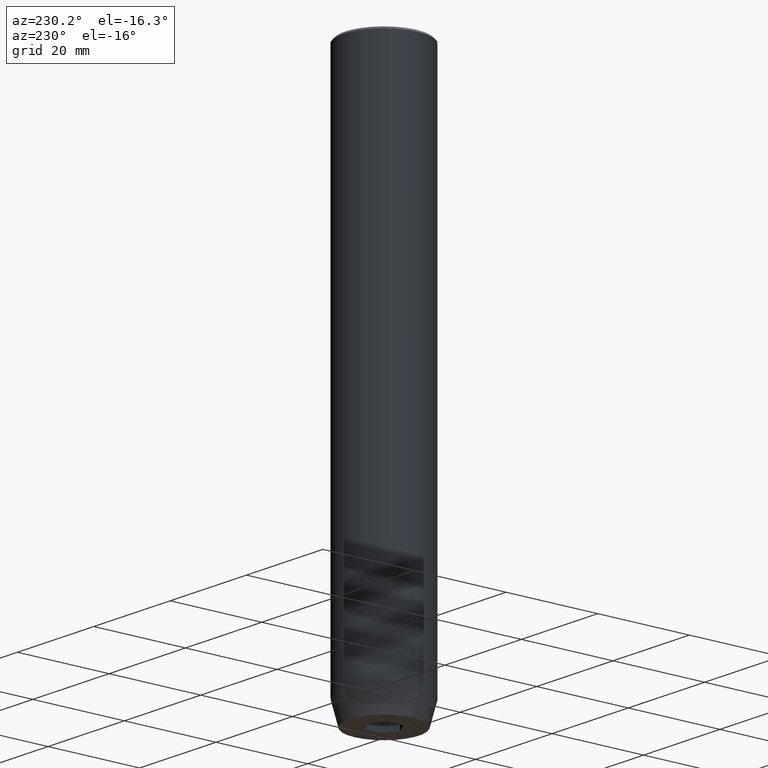
[diagram: clean part render]
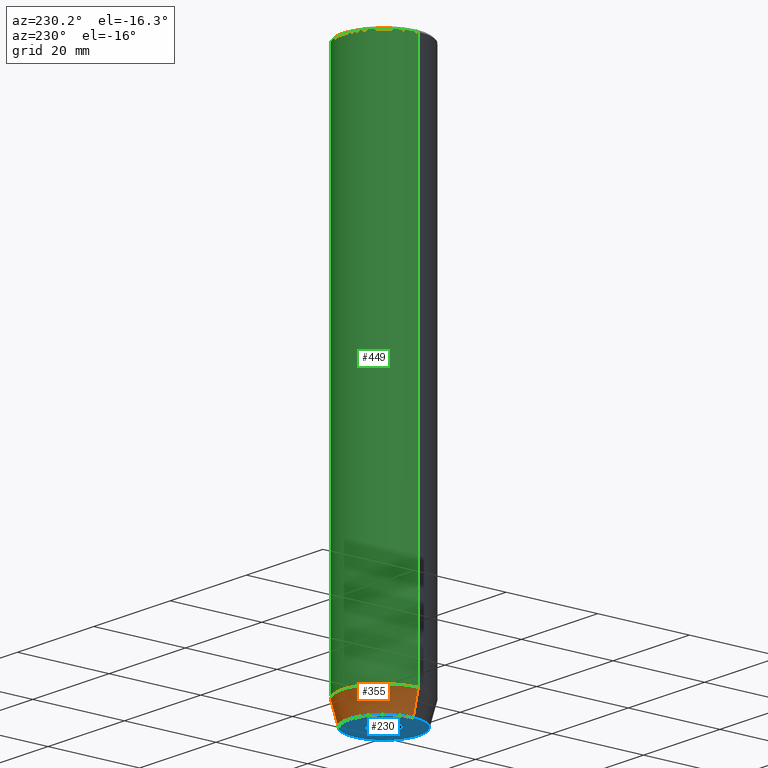
[diagram: same view with three faces highlighted in distinct colors, each labeled with its STEP entity id]
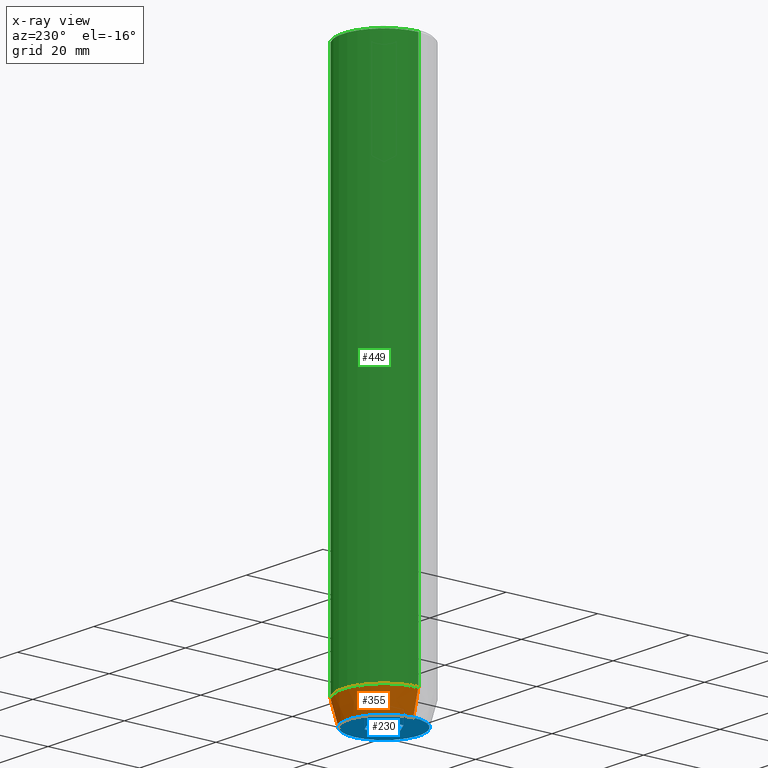
[diagram: x-ray of the same camera — body ghosted, the three highlighted faces saturated]
A machine part, auxiliary view with three faces highlighted in distinct colors.
The next image is the same camera in x-ray (body ghosted, the three faces saturated) — at least one of them is partly hidden behind the body in this view.
Their STEP definitions:

[orange] entity #355 — the highlighted conical surface has half-angle 15 deg.
#14 = ORIENTED_EDGE ( 'NONE', *, *, #240, .F. ) ;
#29 = DIRECTION ( 'NONE',  ( -0.000000000000000000, -0.000000000000000000, 1.000000000000000000 ) ) ;
#35 = CARTESIAN_POINT ( 'NONE',  ( 0.000000000000000000, 0.000000000000000000, -114.9999999999999858 ) ) ;
#45 = EDGE_CURVE ( 'NONE', #270, #75, #459, .T. ) ;
#49 = CONICAL_SURFACE ( 'NONE', #70, 9.000000000000000000, 0.2617993877991502405 ) ;
#70 = AXIS2_PLACEMENT_3D ( 'NONE', #35, #29, #303 ) ;
#75 = VERTEX_POINT ( 'NONE', #92 ) ;
#77 = EDGE_LOOP ( 'NONE', ( #533, #349, #473, #14 ) ) ;
#87 = CARTESIAN_POINT ( 'NONE',  ( 0.000000000000000000, 0.000000000000000000, -120.0000000000000000 ) ) ;
#88 = EDGE_CURVE ( 'NONE', #75, #484, #505, .T. ) ;
#92 = CARTESIAN_POINT ( 'NONE',  ( -7.660254037844380193, 1.020146339021394272E-15, -120.0000000000000000 ) ) ;
#94 = DIRECTION ( 'NONE',  ( -0.2588190451025214611, 3.169619151431774186E-17, 0.9659258262890679791 ) ) ;
#99 = CARTESIAN_POINT ( 'NONE',  ( 9.000000000000000000, 0.000000000000000000, -114.9999999999999858 ) ) ;
#104 = CARTESIAN_POINT ( 'NONE',  ( 7.660254037844380193, 0.000000000000000000, -120.0000000000000000 ) ) ;
#142 = DIRECTION ( 'NONE',  ( -0.000000000000000000, -0.000000000000000000, 1.000000000000000000 ) ) ;
#149 = CARTESIAN_POINT ( 'NONE',  ( 0.000000000000000000, 0.000000000000000000, -114.9999999999999858 ) ) ;
#223 = CARTESIAN_POINT ( 'NONE',  ( -9.000000000000000000, 1.102182119232617714E-15, -114.9999999999999858 ) ) ;
#232 = AXIS2_PLACEMENT_3D ( 'NONE', #87, #327, #365 ) ;
#240 = EDGE_CURVE ( 'NONE', #270, #465, #561, .T. ) ;
#257 = AXIS2_PLACEMENT_3D ( 'NONE', #149, #142, #330 ) ;
#263 = EDGE_CURVE ( 'NONE', #465, #484, #506, .T. ) ;
#270 = VERTEX_POINT ( 'NONE', #104 ) ;
#279 = CARTESIAN_POINT ( 'NONE',  ( 9.000000000000000000, 0.000000000000000000, -114.9999999999999858 ) ) ;
#303 = DIRECTION ( 'NONE',  ( 1.000000000000000000, 0.000000000000000000, 0.000000000000000000 ) ) ;
#327 = DIRECTION ( 'NONE',  ( -0.000000000000000000, -0.000000000000000000, 1.000000000000000000 ) ) ;
#330 = DIRECTION ( 'NONE',  ( 1.000000000000000000, 0.000000000000000000, 0.000000000000000000 ) ) ;
#349 = ORIENTED_EDGE ( 'NONE', *, *, #88, .T. ) ;
#351 = FACE_OUTER_BOUND ( 'NONE', #77, .T. ) ;
#355 = ADVANCED_FACE ( 'NONE', ( #351 ), #49, .T. ) ;
#365 = DIRECTION ( 'NONE',  ( 1.000000000000000000, 0.000000000000000000, 0.000000000000000000 ) ) ;
#401 = CARTESIAN_POINT ( 'NONE',  ( -9.000000000000000000, 1.102182119232617714E-15, -114.9999999999999858 ) ) ;
#459 = CIRCLE ( 'NONE', #232, 7.660254037844380193 ) ;
#465 = VERTEX_POINT ( 'NONE', #279 ) ;
#473 = ORIENTED_EDGE ( 'NONE', *, *, #263, .F. ) ;
#484 = VERTEX_POINT ( 'NONE', #223 ) ;
#490 = VECTOR ( 'NONE', #94, 1000.000000000000114 ) ;
#505 = LINE ( 'NONE', #401, #490 ) ;
#506 = CIRCLE ( 'NONE', #257, 9.000000000000000000 ) ;
#524 = VECTOR ( 'NONE', #551, 1000.000000000000114 ) ;
#533 = ORIENTED_EDGE ( 'NONE', *, *, #45, .T. ) ;
#551 = DIRECTION ( 'NONE',  ( 0.2588190451025214611, 0.000000000000000000, 0.9659258262890679791 ) ) ;
#561 = LINE ( 'NONE', #99, #524 ) ;

[blue] entity #230 — the highlighted planar face has unit normal (0, 0, -1).
#34 = EDGE_CURVE ( 'NONE', #73, #526, #582, .T. ) ;
#44 = CARTESIAN_POINT ( 'NONE',  ( -3.000000000000000888, 1.732050807568876527, -120.0000000000000000 ) ) ;
#45 = EDGE_CURVE ( 'NONE', #270, #75, #459, .T. ) ;
#50 = EDGE_CURVE ( 'NONE', #512, #523, #325, .T. ) ;
#53 = DIRECTION ( 'NONE',  ( 0.000000000000000000, -1.000000000000000000, 0.000000000000000000 ) ) ;
#59 = VECTOR ( 'NONE', #360, 999.9999999999998863 ) ;
#61 = CARTESIAN_POINT ( 'NONE',  ( 3.000000000000000000, 1.732050807568876527, -120.0000000000000000 ) ) ;
#62 = EDGE_CURVE ( 'NONE', #526, #162, #135, .T. ) ;
#71 = DIRECTION ( 'NONE',  ( -2.503857664561932376E-16, 1.000000000000000000, 0.000000000000000000 ) ) ;
#73 = VERTEX_POINT ( 'NONE', #44 ) ;
#75 = VERTEX_POINT ( 'NONE', #92 ) ;
#87 = CARTESIAN_POINT ( 'NONE',  ( 0.000000000000000000, 0.000000000000000000, -120.0000000000000000 ) ) ;
#92 = CARTESIAN_POINT ( 'NONE',  ( -7.660254037844380193, 1.020146339021394272E-15, -120.0000000000000000 ) ) ;
#104 = CARTESIAN_POINT ( 'NONE',  ( 7.660254037844380193, 0.000000000000000000, -120.0000000000000000 ) ) ;
#113 = LINE ( 'NONE', #161, #491 ) ;
#124 = EDGE_LOOP ( 'NONE', ( #565, #226 ) ) ;
#133 = VECTOR ( 'NONE', #53, 1000.000000000000000 ) ;
#135 = LINE ( 'NONE', #502, #394 ) ;
#161 = CARTESIAN_POINT ( 'NONE',  ( -3.000000000000000444, -7.511572993685800087E-16, -120.0000000000000000 ) ) ;
#162 = VERTEX_POINT ( 'NONE', #61 ) ;
#163 = AXIS2_PLACEMENT_3D ( 'NONE', #210, #208, #306 ) ;
#185 = CARTESIAN_POINT ( 'NONE',  ( -2.168404344971008868E-16, -3.464101615137754830, -120.0000000000000000 ) ) ;
#186 = CARTESIAN_POINT ( 'NONE',  ( -1.499999999999999556, 2.598076211353316012, -120.0000000000000000 ) ) ;
#201 = FACE_OUTER_BOUND ( 'NONE', #124, .T. ) ;
#208 = DIRECTION ( 'NONE',  ( -0.000000000000000000, -0.000000000000000000, 1.000000000000000000 ) ) ;
#210 = CARTESIAN_POINT ( 'NONE',  ( 0.000000000000000000, 0.000000000000000000, -120.0000000000000000 ) ) ;
#226 = ORIENTED_EDGE ( 'NONE', *, *, #389, .F. ) ;
#230 = ADVANCED_FACE ( 'NONE', ( #239, #201 ), #333, .T. ) ;
#232 = AXIS2_PLACEMENT_3D ( 'NONE', #87, #327, #365 ) ;
#237 = VECTOR ( 'NONE', #324, 1000.000000000000000 ) ;
#239 = FACE_BOUND ( 'NONE', #408, .T. ) ;
#270 = VERTEX_POINT ( 'NONE', #104 ) ;
#274 = CARTESIAN_POINT ( 'NONE',  ( -3.000000000000000000, -1.732050807568877859, -120.0000000000000000 ) ) ;
#278 = EDGE_CURVE ( 'NONE', #162, #341, #421, .T. ) ;
#282 = DIRECTION ( 'NONE',  ( 0.8660254037844385966, -0.5000000000000001110, 0.000000000000000000 ) ) ;
#286 = DIRECTION ( 'NONE',  ( 0.000000000000000000, 0.000000000000000000, -1.000000000000000000 ) ) ;
#305 = ORIENTED_EDGE ( 'NONE', *, *, #323, .F. ) ;
#306 = DIRECTION ( 'NONE',  ( 1.000000000000000000, 0.000000000000000000, 0.000000000000000000 ) ) ;
#323 = EDGE_CURVE ( 'NONE', #523, #73, #113, .T. ) ;
#324 = DIRECTION ( 'NONE',  ( -0.8660254037844385966, -0.5000000000000001110, 0.000000000000000000 ) ) ;
#325 = LINE ( 'NONE', #541, #432 ) ;
#327 = DIRECTION ( 'NONE',  ( -0.000000000000000000, -0.000000000000000000, 1.000000000000000000 ) ) ;
#333 = PLANE ( 'NONE',  #450 ) ;
#341 = VERTEX_POINT ( 'NONE', #397 ) ;
#360 = DIRECTION ( 'NONE',  ( 0.8660254037844387076, 0.4999999999999999445, 0.000000000000000000 ) ) ;
#362 = DIRECTION ( 'NONE',  ( -0.8660254037844385966, 0.5000000000000001110, 0.000000000000000000 ) ) ;
#365 = DIRECTION ( 'NONE',  ( 1.000000000000000000, 0.000000000000000000, 0.000000000000000000 ) ) ;
#382 = DIRECTION ( 'NONE',  ( -1.000000000000000000, 0.000000000000000000, -0.000000000000000000 ) ) ;
#389 = EDGE_CURVE ( 'NONE', #75, #270, #451, .T. ) ;
#394 = VECTOR ( 'NONE', #282, 1000.000000000000000 ) ;
#397 = CARTESIAN_POINT ( 'NONE',  ( 3.000000000000000000, -1.732050807568876527, -120.0000000000000000 ) ) ;
#400 = CARTESIAN_POINT ( 'NONE',  ( 1.500000000000000222, -2.598076211353315568, -120.0000000000000000 ) ) ;
#408 = EDGE_LOOP ( 'NONE', ( #574, #305, #419, #562, #429, #441 ) ) ;
#419 = ORIENTED_EDGE ( 'NONE', *, *, #50, .F. ) ;
#421 = LINE ( 'NONE', #474, #133 ) ;
#429 = ORIENTED_EDGE ( 'NONE', *, *, #278, .F. ) ;
#432 = VECTOR ( 'NONE', #362, 1000.000000000000000 ) ;
#441 = ORIENTED_EDGE ( 'NONE', *, *, #62, .F. ) ;
#447 = LINE ( 'NONE', #400, #237 ) ;
#450 = AXIS2_PLACEMENT_3D ( 'NONE', #511, #286, #382 ) ;
#451 = CIRCLE ( 'NONE', #163, 7.660254037844380193 ) ;
#452 = CARTESIAN_POINT ( 'NONE',  ( 0.000000000000000000, 3.464101615137754386, -120.0000000000000000 ) ) ;
#459 = CIRCLE ( 'NONE', #232, 7.660254037844380193 ) ;
#474 = CARTESIAN_POINT ( 'NONE',  ( 3.000000000000000000, 0.000000000000000000, -120.0000000000000000 ) ) ;
#475 = EDGE_CURVE ( 'NONE', #341, #512, #447, .T. ) ;
#491 = VECTOR ( 'NONE', #71, 1000.000000000000000 ) ;
#502 = CARTESIAN_POINT ( 'NONE',  ( 1.500000000000000222, 2.598076211353315568, -120.0000000000000000 ) ) ;
#511 = CARTESIAN_POINT ( 'NONE',  ( 0.000000000000000000, 7.660254037844380193, -120.0000000000000000 ) ) ;
#512 = VERTEX_POINT ( 'NONE', #185 ) ;
#523 = VERTEX_POINT ( 'NONE', #274 ) ;
#526 = VERTEX_POINT ( 'NONE', #452 ) ;
#541 = CARTESIAN_POINT ( 'NONE',  ( -1.500000000000000666, -2.598076211353316456, -120.0000000000000000 ) ) ;
#562 = ORIENTED_EDGE ( 'NONE', *, *, #475, .F. ) ;
#565 = ORIENTED_EDGE ( 'NONE', *, *, #45, .F. ) ;
#574 = ORIENTED_EDGE ( 'NONE', *, *, #34, .F. ) ;
#582 = LINE ( 'NONE', #186, #59 ) ;

[green] entity #449 — the highlighted cylindrical surface (partial cylindrical patch) has radius 9 mm, axis along (-0, -0, 1).
#13 = CARTESIAN_POINT ( 'NONE',  ( 9.000000000000000000, 0.000000000000000000, -0.4999999999999952260 ) ) ;
#74 = LINE ( 'NONE', #386, #410 ) ;
#105 = VERTEX_POINT ( 'NONE', #280 ) ;
#112 = VECTOR ( 'NONE', #122, 1000.000000000000000 ) ;
#122 = DIRECTION ( 'NONE',  ( -0.000000000000000000, -0.000000000000000000, 1.000000000000000000 ) ) ;
#142 = DIRECTION ( 'NONE',  ( -0.000000000000000000, -0.000000000000000000, 1.000000000000000000 ) ) ;
#149 = CARTESIAN_POINT ( 'NONE',  ( 0.000000000000000000, 0.000000000000000000, -114.9999999999999858 ) ) ;
#156 = EDGE_CURVE ( 'NONE', #105, #173, #339, .T. ) ;
#172 = CYLINDRICAL_SURFACE ( 'NONE', #576, 9.000000000000000000 ) ;
#173 = VERTEX_POINT ( 'NONE', #13 ) ;
#181 = CARTESIAN_POINT ( 'NONE',  ( 0.000000000000000000, 0.000000000000000000, 0.000000000000000000 ) ) ;
#217 = LINE ( 'NONE', #356, #112 ) ;
#223 = CARTESIAN_POINT ( 'NONE',  ( -9.000000000000000000, 1.102182119232617714E-15, -114.9999999999999858 ) ) ;
#252 = DIRECTION ( 'NONE',  ( 0.000000000000000000, 0.000000000000000000, -1.000000000000000000 ) ) ;
#257 = AXIS2_PLACEMENT_3D ( 'NONE', #149, #142, #330 ) ;
#258 = FACE_OUTER_BOUND ( 'NONE', #377, .T. ) ;
#263 = EDGE_CURVE ( 'NONE', #465, #484, #506, .T. ) ;
#265 = ORIENTED_EDGE ( 'NONE', *, *, #156, .T. ) ;
#271 = DIRECTION ( 'NONE',  ( -0.000000000000000000, -0.000000000000000000, 1.000000000000000000 ) ) ;
#275 = ORIENTED_EDGE ( 'NONE', *, *, #422, .F. ) ;
#279 = CARTESIAN_POINT ( 'NONE',  ( 9.000000000000000000, 0.000000000000000000, -114.9999999999999858 ) ) ;
#280 = CARTESIAN_POINT ( 'NONE',  ( -9.000000000000000000, 1.102182119232617714E-15, -0.4999999999999952260 ) ) ;
#330 = DIRECTION ( 'NONE',  ( 1.000000000000000000, 0.000000000000000000, 0.000000000000000000 ) ) ;
#339 = CIRCLE ( 'NONE', #542, 9.000000000000000000 ) ;
#356 = CARTESIAN_POINT ( 'NONE',  ( -9.000000000000000000, 1.102182119232617714E-15, 0.000000000000000000 ) ) ;
#377 = EDGE_LOOP ( 'NONE', ( #458, #529, #265, #275 ) ) ;
#381 = EDGE_CURVE ( 'NONE', #484, #105, #217, .T. ) ;
#386 = CARTESIAN_POINT ( 'NONE',  ( 9.000000000000000000, 0.000000000000000000, 0.000000000000000000 ) ) ;
#407 = DIRECTION ( 'NONE',  ( 1.000000000000000000, 0.000000000000000000, 0.000000000000000000 ) ) ;
#410 = VECTOR ( 'NONE', #527, 1000.000000000000000 ) ;
#422 = EDGE_CURVE ( 'NONE', #465, #173, #74, .T. ) ;
#428 = DIRECTION ( 'NONE',  ( 1.000000000000000000, 0.000000000000000000, 0.000000000000000000 ) ) ;
#449 = ADVANCED_FACE ( 'NONE', ( #258 ), #172, .T. ) ;
#458 = ORIENTED_EDGE ( 'NONE', *, *, #263, .T. ) ;
#465 = VERTEX_POINT ( 'NONE', #279 ) ;
#484 = VERTEX_POINT ( 'NONE', #223 ) ;
#506 = CIRCLE ( 'NONE', #257, 9.000000000000000000 ) ;
#527 = DIRECTION ( 'NONE',  ( -0.000000000000000000, -0.000000000000000000, 1.000000000000000000 ) ) ;
#529 = ORIENTED_EDGE ( 'NONE', *, *, #381, .T. ) ;
#542 = AXIS2_PLACEMENT_3D ( 'NONE', #554, #252, #428 ) ;
#554 = CARTESIAN_POINT ( 'NONE',  ( 0.000000000000000000, 0.000000000000000000, -0.4999999999999952260 ) ) ;
#576 = AXIS2_PLACEMENT_3D ( 'NONE', #181, #271, #407 ) ;